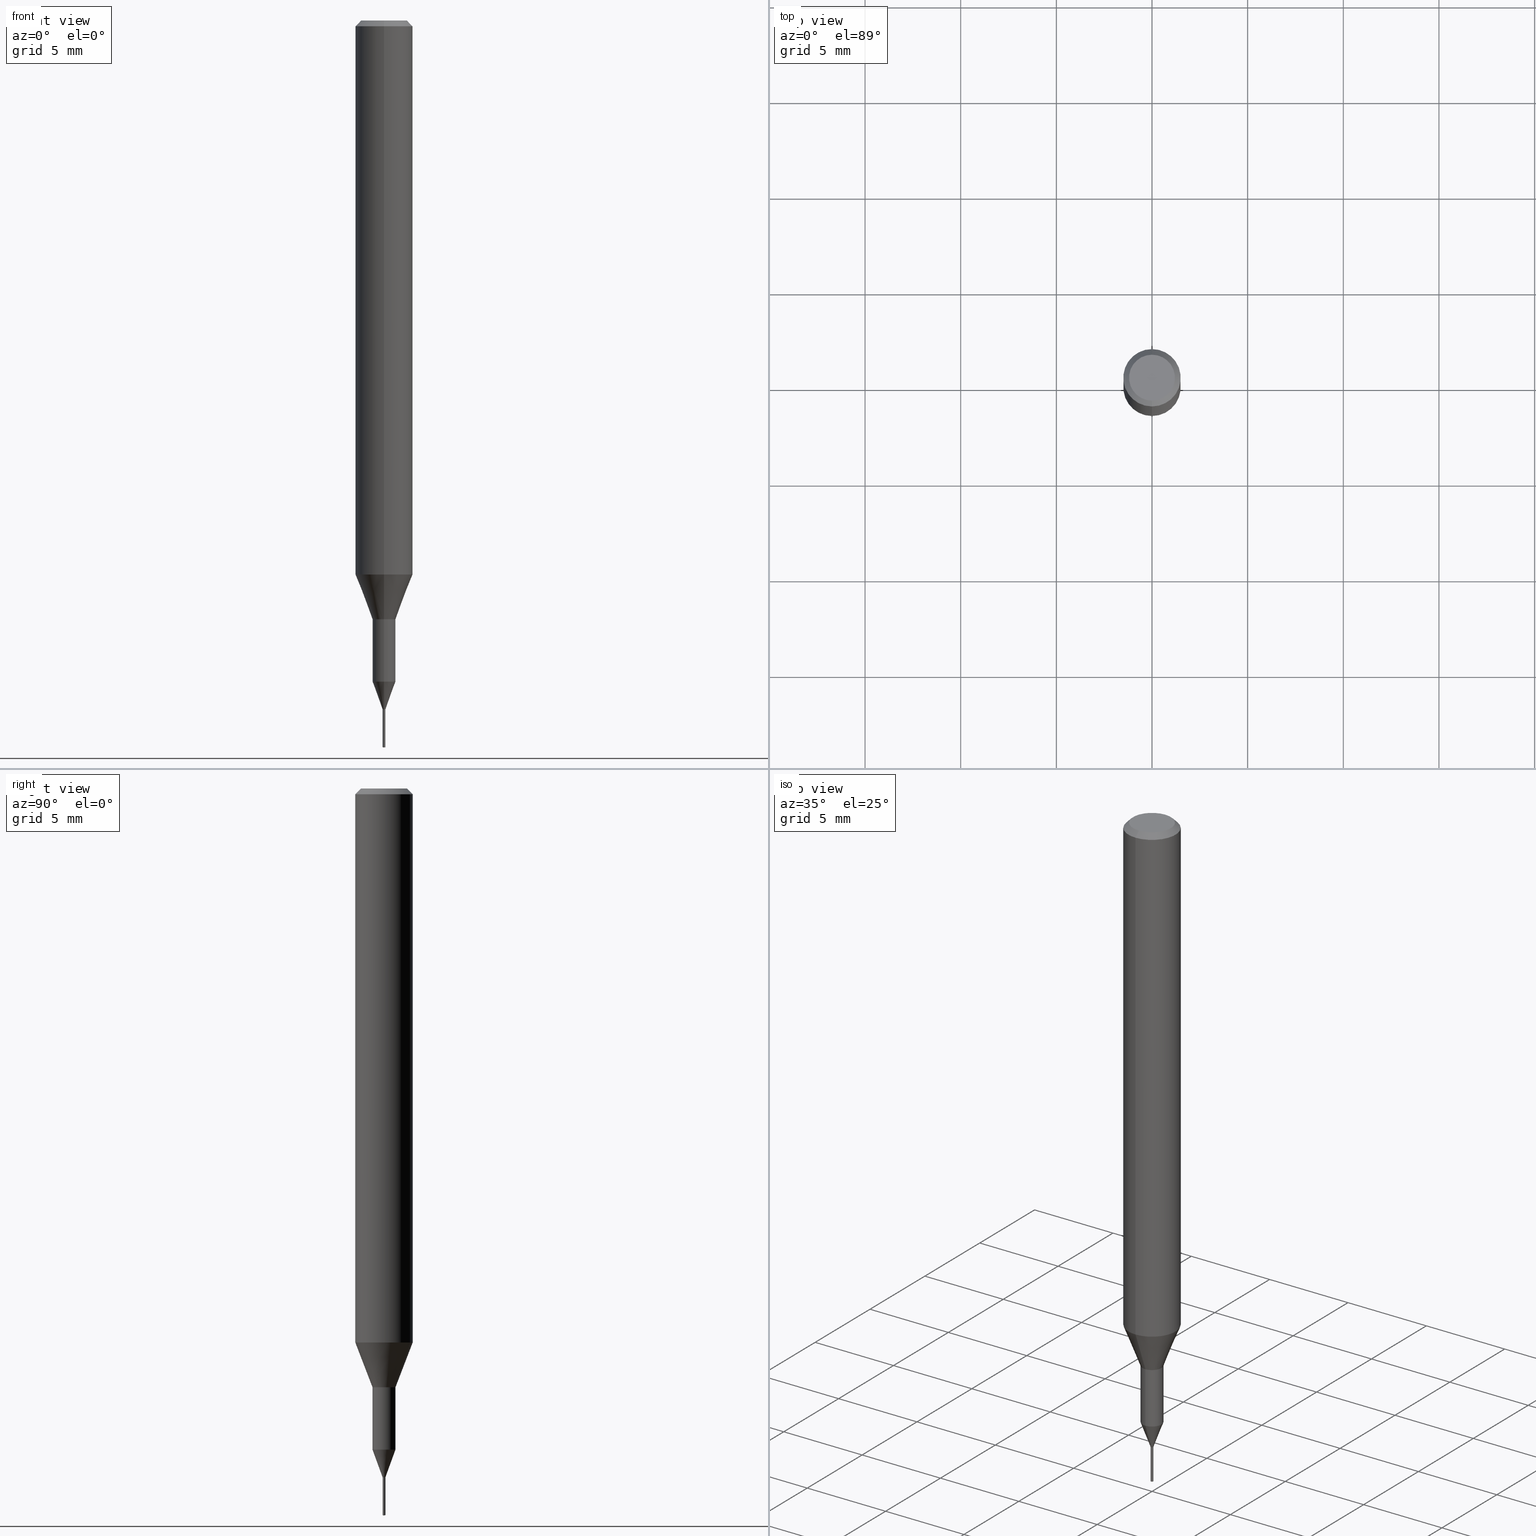
[diagram: canonical four-view strip — front | top / right | iso, engineering-drawing reading convention]
A machine part, canonical four-view strip (front | top / right | iso — engineering-drawing reading convention). The complete STEP part file that produces these views, byte-faithful:
ISO-10303-21;
HEADER;
FILE_DESCRIPTION(('no description'),'unknown implementation level');
FILE_NAME('C-UMD2015-020-Huellk.stp','  ',('CIMSOURCE GmbH'),('CADClick - KiM GmbH - www.kimweb.de'),'unknown preprocess','ACIS','unknown authorization');
FILE_SCHEMA(('automotive_design'));
ENDSEC;
DATA;
#1=MECHANICAL_DESIGN_GEOMETRIC_PRESENTATION_REPRESENTATION(' ',(#14,#15,#16,#17,#18,#19,#20,#21,#22,#23,#24,#25,#26,#27,#28,#29,#30,#31,#32,#33,#34,#35,#36,#37,#38,#39,#40,#41,#42,#43,#44,#45,#46,#47,#48,#49,#50,#51,#52,#53,#54,#55,#56,#57,#58,#59,#60,#61,#62,#63,#64,#65,#66,#67,#68,#69,#70,#71,#72,#73,#74,#75,#76,#77,#78,#79,#80,#81,#82,#83,#84,#85,#86,#87,#88,#89,#90,#91,#92),#10);
#2=PRODUCT_DEFINITION_CONTEXT('',#93,'design');
#3=APPLICATION_PROTOCOL_DEFINITION('INTERNATIONAL STANDARD','automotive_design',1994,#93);
#4=PRODUCT_CATEGORY_RELATIONSHIP('NONE','NONE',#94,#95);
#5=SHAPE_DEFINITION_REPRESENTATION(#96,#97);
#6=PRODUCT_DEFINITION_CONTEXT('',#98,'design');
#7=APPLICATION_PROTOCOL_DEFINITION('INTERNATIONAL STANDARD','automotive_design',1994,#98);
#8=PRODUCT_CATEGORY_RELATIONSHIP('NONE','NONE',#99,#100);
#9=SHAPE_DEFINITION_REPRESENTATION(#101,#102);
#10= (GEOMETRIC_REPRESENTATION_CONTEXT(3)GLOBAL_UNCERTAINTY_ASSIGNED_CONTEXT((#105))GLOBAL_UNIT_ASSIGNED_CONTEXT((#107,#108,#109))REPRESENTATION_CONTEXT('NONE','WORKSPACE'));
#14=STYLED_ITEM('',(#111),#112);
#15=STYLED_ITEM('',(#113),#114);
#16=STYLED_ITEM('',(#115),#116);
#17=STYLED_ITEM('',(#117),#118);
#18=STYLED_ITEM('',(#119),#120);
#19=STYLED_ITEM('',(#121),#122);
#20=STYLED_ITEM('',(#123),#124);
#21=STYLED_ITEM('',(#125),#126);
#22=STYLED_ITEM('',(#127),#128);
#23=STYLED_ITEM('',(#129),#130);
#24=STYLED_ITEM('',(#131),#132);
#25=STYLED_ITEM('',(#133),#134);
#26=STYLED_ITEM('',(#135),#136);
#27=STYLED_ITEM('',(#137),#138);
#28=STYLED_ITEM('',(#139),#140);
#29=STYLED_ITEM('',(#141),#142);
#30=STYLED_ITEM('',(#143),#144);
#31=STYLED_ITEM('',(#145),#146);
#32=STYLED_ITEM('',(#147),#148);
#33=STYLED_ITEM('',(#149),#150);
#34=STYLED_ITEM('',(#151),#152);
#35=STYLED_ITEM('',(#153),#154);
#36=STYLED_ITEM('',(#155),#156);
#37=STYLED_ITEM('',(#157),#158);
#38=STYLED_ITEM('',(#159),#160);
#39=STYLED_ITEM('',(#161),#162);
#40=STYLED_ITEM('',(#163),#164);
#41=STYLED_ITEM('',(#165),#166);
#42=STYLED_ITEM('',(#167),#168);
#43=STYLED_ITEM('',(#169),#170);
#44=STYLED_ITEM('',(#171),#172);
#45=STYLED_ITEM('',(#173),#174);
#46=STYLED_ITEM('',(#175),#176);
#47=STYLED_ITEM('',(#177),#178);
#48=STYLED_ITEM('',(#179),#180);
#49=STYLED_ITEM('',(#181),#182);
#50=STYLED_ITEM('',(#183),#184);
#51=STYLED_ITEM('',(#185),#186);
#52=STYLED_ITEM('',(#187),#188);
#53=STYLED_ITEM('',(#189),#190);
#54=STYLED_ITEM('',(#191),#192);
#55=STYLED_ITEM('',(#193),#194);
#56=STYLED_ITEM('',(#195),#196);
#57=STYLED_ITEM('',(#197),#198);
#58=STYLED_ITEM('',(#199),#200);
#59=STYLED_ITEM('',(#201),#202);
#60=STYLED_ITEM('',(#203),#204);
#61=STYLED_ITEM('',(#205),#206);
#62=STYLED_ITEM('',(#207),#208);
#63=STYLED_ITEM('',(#209),#210);
#64=STYLED_ITEM('',(#211),#212);
#65=STYLED_ITEM('',(#213),#214);
#66=STYLED_ITEM('',(#215),#216);
#67=STYLED_ITEM('',(#217),#218);
#68=STYLED_ITEM('',(#219),#220);
#69=STYLED_ITEM('',(#221),#222);
#70=STYLED_ITEM('',(#223),#224);
#71=STYLED_ITEM('',(#225),#226);
#72=STYLED_ITEM('',(#227),#228);
#73=STYLED_ITEM('',(#229),#230);
#74=STYLED_ITEM('',(#231),#232);
#75=STYLED_ITEM('',(#233),#234);
#76=STYLED_ITEM('',(#235),#236);
#77=STYLED_ITEM('',(#237),#238);
#78=STYLED_ITEM('',(#239),#240);
#79=STYLED_ITEM('',(#241),#242);
#80=STYLED_ITEM('',(#243),#244);
#81=STYLED_ITEM('',(#245),#246);
#82=STYLED_ITEM('',(#247),#248);
#83=STYLED_ITEM('',(#249),#250);
#84=STYLED_ITEM('',(#251),#252);
#85=STYLED_ITEM('',(#253),#254);
#86=STYLED_ITEM('',(#255),#256);
#87=STYLED_ITEM('',(#257),#258);
#88=STYLED_ITEM('',(#259),#260);
#89=STYLED_ITEM('',(#261),#262);
#90=STYLED_ITEM('',(#263),#264);
#91=STYLED_ITEM('',(#265),#266);
#92=STYLED_ITEM('',(#267),#268);
#93=APPLICATION_CONTEXT(' ');
#94=PRODUCT_CATEGORY('part','NONE');
#95=PRODUCT_RELATED_PRODUCT_CATEGORY('detail',' ',(#269));
#96=PRODUCT_DEFINITION_SHAPE('NONE','NONE',#270);
#97=ADVANCED_BREP_SHAPE_REPRESENTATION('1',(#202,#271),#10);
#98=APPLICATION_CONTEXT(' ');
#99=PRODUCT_CATEGORY('part','NONE');
#100=PRODUCT_RELATED_PRODUCT_CATEGORY('detail',' ',(#272));
#101=PRODUCT_DEFINITION_SHAPE('NONE','NONE',#273);
#102=ADVANCED_BREP_SHAPE_REPRESENTATION('2',(#158,#274),#10);
#105=UNCERTAINTY_MEASURE_WITH_UNIT(LENGTH_MEASURE(1.0E-006),#107,'','');
#107= (CONVERSION_BASED_UNIT('MILLIMETRE',#277)LENGTH_UNIT()NAMED_UNIT(#280));
#108= (NAMED_UNIT(#282)PLANE_ANGLE_UNIT()SI_UNIT($,.RADIAN.));
#109= (NAMED_UNIT(#282)SOLID_ANGLE_UNIT()SI_UNIT($,.STERADIAN.));
#111=PRESENTATION_STYLE_ASSIGNMENT((#288));
#112=ADVANCED_FACE('',(#289),#290,.T.);
#113=PRESENTATION_STYLE_ASSIGNMENT((#291));
#114=ADVANCED_FACE('',(#292),#293,.T.);
#115=PRESENTATION_STYLE_ASSIGNMENT((#294));
#116=EDGE_CURVE('',#142,#248,#295,.T.);
#117=PRESENTATION_STYLE_ASSIGNMENT((#296));
#118=EDGE_CURVE('',#240,#248,#297,.T.);
#119=PRESENTATION_STYLE_ASSIGNMENT((#298));
#120=VERTEX_POINT('',#299);
#121=PRESENTATION_STYLE_ASSIGNMENT((#300));
#122=EDGE_CURVE('',#166,#214,#301,.T.);
#123=PRESENTATION_STYLE_ASSIGNMENT((#302));
#124=EDGE_CURVE('',#180,#184,#303,.T.);
#125=PRESENTATION_STYLE_ASSIGNMENT((#304));
#126=EDGE_CURVE('',#222,#184,#305,.T.);
#127=PRESENTATION_STYLE_ASSIGNMENT((#306));
#128=VERTEX_POINT('',#307);
#129=PRESENTATION_STYLE_ASSIGNMENT((#308));
#130=VERTEX_POINT('',#309);
#131=PRESENTATION_STYLE_ASSIGNMENT((#310));
#132=EDGE_CURVE('',#142,#130,#311,.T.);
#133=PRESENTATION_STYLE_ASSIGNMENT((#312));
#134=ADVANCED_FACE('',(#313),#314,.T.);
#135=PRESENTATION_STYLE_ASSIGNMENT((#315));
#136=ADVANCED_FACE('',(#316),#317,.T.);
#137=PRESENTATION_STYLE_ASSIGNMENT((#318));
#138=EDGE_CURVE('',#180,#128,#319,.T.);
#139=PRESENTATION_STYLE_ASSIGNMENT((#320));
#140=EDGE_CURVE('',#228,#120,#321,.T.);
#141=PRESENTATION_STYLE_ASSIGNMENT((#322));
#142=VERTEX_POINT('',#323);
#143=PRESENTATION_STYLE_ASSIGNMENT((#324));
#144=VERTEX_POINT('',#325);
#145=PRESENTATION_STYLE_ASSIGNMENT((#326));
#146=EDGE_CURVE('',#182,#192,#327,.T.);
#147=PRESENTATION_STYLE_ASSIGNMENT((#328));
#148=ADVANCED_FACE('',(#329,#330),#331,.T.);
#149=PRESENTATION_STYLE_ASSIGNMENT((#332));
#150=VERTEX_POINT('',#333);
#151=PRESENTATION_STYLE_ASSIGNMENT((#334));
#152=EDGE_CURVE('',#150,#192,#335,.T.);
#153=PRESENTATION_STYLE_ASSIGNMENT((#336));
#154=ADVANCED_FACE('',(#337),#338,.T.);
#155=PRESENTATION_STYLE_ASSIGNMENT((#339));
#156=EDGE_CURVE('',#230,#242,#340,.T.);
#157=PRESENTATION_STYLE_ASSIGNMENT((#341));
#158=MANIFOLD_SOLID_BREP('2',#342);
#159=PRESENTATION_STYLE_ASSIGNMENT((#343));
#160=ADVANCED_FACE('',(#344),#345,.T.);
#161=PRESENTATION_STYLE_ASSIGNMENT((#346));
#162=EDGE_CURVE('',#144,#240,#347,.T.);
#163=PRESENTATION_STYLE_ASSIGNMENT((#348));
#164=VERTEX_POINT('',#349);
#165=PRESENTATION_STYLE_ASSIGNMENT((#350));
#166=VERTEX_POINT('',#351);
#167=PRESENTATION_STYLE_ASSIGNMENT((#352));
#168=EDGE_CURVE('',#120,#230,#353,.T.);
#169=PRESENTATION_STYLE_ASSIGNMENT((#354));
#170=EDGE_CURVE('',#166,#120,#355,.T.);
#171=PRESENTATION_STYLE_ASSIGNMENT((#356));
#172=EDGE_CURVE('',#192,#180,#357,.T.);
#173=PRESENTATION_STYLE_ASSIGNMENT((#358));
#174=VERTEX_POINT('',#359);
#175=PRESENTATION_STYLE_ASSIGNMENT((#360));
#176=EDGE_CURVE('',#262,#142,#361,.T.);
#177=PRESENTATION_STYLE_ASSIGNMENT((#362));
#178=EDGE_CURVE('',#248,#240,#363,.T.);
#179=PRESENTATION_STYLE_ASSIGNMENT((#364));
#180=VERTEX_POINT('',#365);
#181=PRESENTATION_STYLE_ASSIGNMENT((#366));
#182=VERTEX_POINT('',#367);
#183=PRESENTATION_STYLE_ASSIGNMENT((#368));
#184=VERTEX_POINT('',#369);
#185=PRESENTATION_STYLE_ASSIGNMENT((#370));
#186=ADVANCED_FACE('',(#371),#372,.T.);
#187=PRESENTATION_STYLE_ASSIGNMENT((#373));
#188=EDGE_CURVE('',#222,#128,#374,.T.);
#189=PRESENTATION_STYLE_ASSIGNMENT((#375));
#190=ADVANCED_FACE('',(#376),#377,.T.);
#191=PRESENTATION_STYLE_ASSIGNMENT((#378));
#192=VERTEX_POINT('',#379);
#193=PRESENTATION_STYLE_ASSIGNMENT((#380));
#194=ADVANCED_FACE('',(#381),#382,.T.);
#195=PRESENTATION_STYLE_ASSIGNMENT((#383));
#196=ADVANCED_FACE('',(#384),#385,.T.);
#197=PRESENTATION_STYLE_ASSIGNMENT((#386));
#198=ADVANCED_FACE('',(#387),#388,.T.);
#199=PRESENTATION_STYLE_ASSIGNMENT((#389));
#200=EDGE_CURVE('',#240,#130,#390,.T.);
#201=PRESENTATION_STYLE_ASSIGNMENT((#391));
#202=MANIFOLD_SOLID_BREP('1',#392);
#203=PRESENTATION_STYLE_ASSIGNMENT((#393));
#204=ADVANCED_FACE('',(#394),#395,.T.);
#205=PRESENTATION_STYLE_ASSIGNMENT((#396));
#206=EDGE_CURVE('',#262,#164,#397,.T.);
#207=PRESENTATION_STYLE_ASSIGNMENT((#398));
#208=ADVANCED_FACE('',(#399),#400,.T.);
#209=PRESENTATION_STYLE_ASSIGNMENT((#401));
#210=EDGE_CURVE('',#130,#164,#402,.T.);
#211=PRESENTATION_STYLE_ASSIGNMENT((#403));
#212=ADVANCED_FACE('',(#404),#405,.T.);
#213=PRESENTATION_STYLE_ASSIGNMENT((#406));
#214=VERTEX_POINT('',#407);
#215=PRESENTATION_STYLE_ASSIGNMENT((#408));
#216=EDGE_CURVE('',#184,#180,#409,.T.);
#217=PRESENTATION_STYLE_ASSIGNMENT((#410));
#218=EDGE_CURVE('',#248,#144,#411,.T.);
#219=PRESENTATION_STYLE_ASSIGNMENT((#412));
#220=EDGE_CURVE('',#150,#174,#413,.T.);
#221=PRESENTATION_STYLE_ASSIGNMENT((#414));
#222=VERTEX_POINT('',#415);
#223=PRESENTATION_STYLE_ASSIGNMENT((#416));
#224=EDGE_CURVE('',#164,#262,#417,.T.);
#225=PRESENTATION_STYLE_ASSIGNMENT((#418));
#226=EDGE_CURVE('',#130,#142,#419,.T.);
#227=PRESENTATION_STYLE_ASSIGNMENT((#420));
#228=VERTEX_POINT('',#421);
#229=PRESENTATION_STYLE_ASSIGNMENT((#422));
#230=VERTEX_POINT('',#423);
#231=PRESENTATION_STYLE_ASSIGNMENT((#424));
#232=EDGE_CURVE('',#214,#166,#425,.T.);
#233=PRESENTATION_STYLE_ASSIGNMENT((#426));
#234=EDGE_CURVE('',#184,#182,#427,.T.);
#235=PRESENTATION_STYLE_ASSIGNMENT((#428));
#236=EDGE_CURVE('',#192,#182,#429,.T.);
#237=PRESENTATION_STYLE_ASSIGNMENT((#430));
#238=ADVANCED_FACE('',(#431),#432,.T.);
#239=PRESENTATION_STYLE_ASSIGNMENT((#433));
#240=VERTEX_POINT('',#434);
#241=PRESENTATION_STYLE_ASSIGNMENT((#435));
#242=VERTEX_POINT('',#436);
#243=PRESENTATION_STYLE_ASSIGNMENT((#437));
#244=EDGE_CURVE('',#228,#214,#438,.T.);
#245=PRESENTATION_STYLE_ASSIGNMENT((#439));
#246=ADVANCED_FACE('',(#440),#441,.T.);
#247=PRESENTATION_STYLE_ASSIGNMENT((#442));
#248=VERTEX_POINT('',#443);
#249=PRESENTATION_STYLE_ASSIGNMENT((#444));
#250=ADVANCED_FACE('',(#445),#446,.T.);
#251=PRESENTATION_STYLE_ASSIGNMENT((#447));
#252=EDGE_CURVE('',#242,#228,#448,.T.);
#253=PRESENTATION_STYLE_ASSIGNMENT((#449));
#254=EDGE_CURVE('',#182,#174,#450,.T.);
#255=PRESENTATION_STYLE_ASSIGNMENT((#451));
#256=EDGE_CURVE('',#242,#230,#452,.T.);
#257=PRESENTATION_STYLE_ASSIGNMENT((#453));
#258=EDGE_CURVE('',#120,#228,#454,.T.);
#259=PRESENTATION_STYLE_ASSIGNMENT((#455));
#260=ADVANCED_FACE('',(#456),#457,.T.);
#261=PRESENTATION_STYLE_ASSIGNMENT((#458));
#262=VERTEX_POINT('',#459);
#263=PRESENTATION_STYLE_ASSIGNMENT((#460));
#264=EDGE_CURVE('',#128,#222,#461,.T.);
#265=PRESENTATION_STYLE_ASSIGNMENT((#462));
#266=ADVANCED_FACE('',(#463),#464,.T.);
#267=PRESENTATION_STYLE_ASSIGNMENT((#465));
#268=EDGE_CURVE('',#174,#150,#466,.T.);
#269=PRODUCT('1','1','PART-1-DESC',(#467));
#270=PRODUCT_DEFINITION('NONE','NONE',#468,#2);
#271=AXIS2_PLACEMENT_3D('',#469,#470,#471);
#272=PRODUCT('2','2','PART-2-DESC',(#472));
#273=PRODUCT_DEFINITION('NONE','NONE',#473,#6);
#274=AXIS2_PLACEMENT_3D('',#474,#475,#476);
#277=LENGTH_MEASURE_WITH_UNIT(LENGTH_MEASURE(1.0),#477);
#280=DIMENSIONAL_EXPONENTS(1.0,0.0,0.0,0.0,0.0,0.0,0.0);
#282=DIMENSIONAL_EXPONENTS(0.0,0.0,0.0,0.0,0.0,0.0,0.0);
#288=SURFACE_STYLE_USAGE(.BOTH.,#478);
#289=FACE_OUTER_BOUND('',#479,.T.);
#290=CONICAL_SURFACE('',#480,0.337493202149792,0.349130098982072);
#291=SURFACE_STYLE_USAGE(.BOTH.,#481);
#292=FACE_OUTER_BOUND('',#482,.T.);
#293=CONICAL_SURFACE('',#483,0.337493202149792,0.349130098982072);
#294=CURVE_STYLE('',#484,POSITIVE_LENGTH_MEASURE(1.0E-006),#485);
#295=LINE('',#486,#487);
#296=CURVE_STYLE('',#488,POSITIVE_LENGTH_MEASURE(1.0E-006),#489);
#297=CIRCLE('',#490,0.075);
#298=POINT_STYLE(' ',#491,POSITIVE_LENGTH_MEASURE(1.0E-006),#492);
#299=CARTESIAN_POINT('',(0.0,0.59995,-34.558));
#300=CURVE_STYLE('',#493,POSITIVE_LENGTH_MEASURE(1.0E-006),#494);
#301=CIRCLE('',#495,0.59995);
#302=CURVE_STYLE('',#496,POSITIVE_LENGTH_MEASURE(1.0E-006),#497);
#303=CIRCLE('',#498,1.5);
#304=CURVE_STYLE('',#499,POSITIVE_LENGTH_MEASURE(1.0E-006),#500);
#305=LINE('',#501,#502);
#306=POINT_STYLE(' ',#503,POSITIVE_LENGTH_MEASURE(1.0E-006),#504);
#307=CARTESIAN_POINT('',(0.0,0.6,-31.3));
#308=POINT_STYLE(' ',#505,POSITIVE_LENGTH_MEASURE(1.0E-006),#506);
#309=CARTESIAN_POINT('',(0.075,9.18454765366783E-018,-36.0));
#310=CURVE_STYLE('',#507,POSITIVE_LENGTH_MEASURE(1.0E-006),#508);
#311=CIRCLE('',#509,0.075);
#312=SURFACE_STYLE_USAGE(.BOTH.,#510);
#313=FACE_OUTER_BOUND('',#511,.T.);
#314=CONICAL_SURFACE('',#512,1.05,0.366459241971866);
#315=SURFACE_STYLE_USAGE(.BOTH.,#513);
#316=FACE_OUTER_BOUND('',#514,.T.);
#317=CYLINDRICAL_SURFACE('',#515,0.59995);
#318=CURVE_STYLE('',#516,POSITIVE_LENGTH_MEASURE(1.0E-006),#517);
#319=LINE('',#518,#519);
#320=CURVE_STYLE('',#520,POSITIVE_LENGTH_MEASURE(1.0E-006),#521);
#321=CIRCLE('',#522,0.59995);
#322=POINT_STYLE(' ',#523,POSITIVE_LENGTH_MEASURE(1.0E-006),#524);
#323=CARTESIAN_POINT('',(-0.075,0.0,-36.0));
#324=POINT_STYLE(' ',#525,POSITIVE_LENGTH_MEASURE(1.0E-006),#526);
#325=CARTESIAN_POINT('',(0.0,0.0,-38.0));
#326=CURVE_STYLE('',#527,POSITIVE_LENGTH_MEASURE(1.0E-006),#528);
#327=CIRCLE('',#529,1.5);
#328=SURFACE_STYLE_USAGE(.BOTH.,#530);
#329=FACE_BOUND('',#531,.T.);
#330=FACE_OUTER_BOUND('',#532,.T.);
#331=PLANE('',#533);
#332=POINT_STYLE(' ',#534,POSITIVE_LENGTH_MEASURE(1.0E-006),#535);
#333=CARTESIAN_POINT('',(0.0,1.2,0.0));
#334=CURVE_STYLE('',#536,POSITIVE_LENGTH_MEASURE(1.0E-006),#537);
#335=LINE('',#538,#539);
#336=SURFACE_STYLE_USAGE(.BOTH.,#540);
#337=FACE_OUTER_BOUND('',#541,.T.);
#338=CONICAL_SURFACE('',#542,0.0755182038834951,1.4746069699693);
#339=CURVE_STYLE('',#543,POSITIVE_LENGTH_MEASURE(1.0E-006),#544);
#340=CIRCLE('',#545,0.0750364042995838);
#341=SURFACE_STYLE_USAGE(.BOTH.,#546);
#342=CLOSED_SHELL('',(#196,#198,#260,#190,#154,#246,#238));
#343=SURFACE_STYLE_USAGE(.BOTH.,#547);
#344=FACE_OUTER_BOUND('',#548,.T.);
#345=PLANE('',#549);
#346=CURVE_STYLE('',#550,POSITIVE_LENGTH_MEASURE(1.0E-006),#551);
#347=LINE('',#552,#553);
#348=POINT_STYLE(' ',#554,POSITIVE_LENGTH_MEASURE(1.0E-006),#555);
#349=CARTESIAN_POINT('',(0.0760364077669902,9.31146680732853E-018,-35.9999));
#350=POINT_STYLE(' ',#556,POSITIVE_LENGTH_MEASURE(1.0E-006),#557);
#351=CARTESIAN_POINT('',(0.0,0.59995,-31.3));
#352=CURVE_STYLE('',#558,POSITIVE_LENGTH_MEASURE(1.0E-006),#559);
#353=LINE('',#560,#561);
#354=CURVE_STYLE('',#562,POSITIVE_LENGTH_MEASURE(1.0E-006),#563);
#355=LINE('',#564,#565);
#356=CURVE_STYLE('',#566,POSITIVE_LENGTH_MEASURE(1.0E-006),#567);
#357=LINE('',#568,#569);
#358=POINT_STYLE(' ',#570,POSITIVE_LENGTH_MEASURE(1.0E-006),#571);
#359=CARTESIAN_POINT('',(1.46952762458685E-016,-1.2,0.0));
#360=CURVE_STYLE('',#572,POSITIVE_LENGTH_MEASURE(1.0E-006),#573);
#361=LINE('',#574,#575);
#362=CURVE_STYLE('',#576,POSITIVE_LENGTH_MEASURE(1.0E-006),#577);
#363=CIRCLE('',#578,0.075);
#364=POINT_STYLE(' ',#579,POSITIVE_LENGTH_MEASURE(1.0E-006),#580);
#365=CARTESIAN_POINT('',(0.0,1.5,-28.955));
#366=POINT_STYLE(' ',#581,POSITIVE_LENGTH_MEASURE(1.0E-006),#582);
#367=CARTESIAN_POINT('',(1.83690953073357E-016,-1.5,-0.300000000000001));
#368=POINT_STYLE(' ',#583,POSITIVE_LENGTH_MEASURE(1.0E-006),#584);
#369=CARTESIAN_POINT('',(1.83690953073357E-016,-1.5,-28.955));
#370=SURFACE_STYLE_USAGE(.BOTH.,#585);
#371=FACE_OUTER_BOUND('',#586,.T.);
#372=CONICAL_SURFACE('',#587,1.35,0.785398163397447);
#373=CURVE_STYLE('',#588,POSITIVE_LENGTH_MEASURE(1.0E-006),#589);
#374=CIRCLE('',#590,0.6);
#375=SURFACE_STYLE_USAGE(.BOTH.,#591);
#376=FACE_OUTER_BOUND('',#592,.T.);
#377=PLANE('',#593);
#378=POINT_STYLE(' ',#594,POSITIVE_LENGTH_MEASURE(1.0E-006),#595);
#379=CARTESIAN_POINT('',(0.0,1.5,-0.300000000000001));
#380=SURFACE_STYLE_USAGE(.BOTH.,#596);
#381=FACE_OUTER_BOUND('',#597,.T.);
#382=CYLINDRICAL_SURFACE('',#598,1.5);
#383=SURFACE_STYLE_USAGE(.BOTH.,#599);
#384=FACE_OUTER_BOUND('',#600,.T.);
#385=CONICAL_SURFACE('',#601,0.0375,1.30899693193389);
#386=SURFACE_STYLE_USAGE(.BOTH.,#602);
#387=FACE_OUTER_BOUND('',#603,.T.);
#388=CYLINDRICAL_SURFACE('',#604,0.075);
#389=CURVE_STYLE('',#605,POSITIVE_LENGTH_MEASURE(1.0E-006),#606);
#390=LINE('',#607,#608);
#391=SURFACE_STYLE_USAGE(.BOTH.,#609);
#392=CLOSED_SHELL('',(#112,#136,#266,#250,#186,#212,#204,#194,#134,#148,#208,#114,#160));
#393=SURFACE_STYLE_USAGE(.BOTH.,#610);
#394=FACE_OUTER_BOUND('',#611,.T.);
#395=CONICAL_SURFACE('',#612,1.35,0.785398163397447);
#396=CURVE_STYLE('',#613,POSITIVE_LENGTH_MEASURE(1.0E-006),#614);
#397=CIRCLE('',#615,0.0760364077669902);
#398=SURFACE_STYLE_USAGE(.BOTH.,#616);
#399=FACE_OUTER_BOUND('',#617,.T.);
#400=CYLINDRICAL_SURFACE('',#618,0.59995);
#401=CURVE_STYLE('',#619,POSITIVE_LENGTH_MEASURE(1.0E-006),#620);
#402=LINE('',#621,#622);
#403=SURFACE_STYLE_USAGE(.BOTH.,#623);
#404=FACE_OUTER_BOUND('',#624,.T.);
#405=PLANE('',#625);
#406=POINT_STYLE(' ',#626,POSITIVE_LENGTH_MEASURE(1.0E-006),#627);
#407=CARTESIAN_POINT('',(7.34702581975735E-017,-0.59995,-31.3));
#408=CURVE_STYLE('',#628,POSITIVE_LENGTH_MEASURE(1.0E-006),#629);
#409=CIRCLE('',#630,1.5);
#410=CURVE_STYLE('',#631,POSITIVE_LENGTH_MEASURE(1.0E-006),#632);
#411=LINE('',#633,#634);
#412=CURVE_STYLE('',#635,POSITIVE_LENGTH_MEASURE(1.0E-006),#636);
#413=CIRCLE('',#637,1.2);
#414=POINT_STYLE(' ',#638,POSITIVE_LENGTH_MEASURE(1.0E-006),#639);
#415=CARTESIAN_POINT('',(7.34763812293426E-017,-0.6,-31.3));
#416=CURVE_STYLE('',#640,POSITIVE_LENGTH_MEASURE(1.0E-006),#641);
#417=CIRCLE('',#642,0.0760364077669902);
#418=CURVE_STYLE('',#643,POSITIVE_LENGTH_MEASURE(1.0E-006),#644);
#419=CIRCLE('',#645,0.075);
#420=POINT_STYLE(' ',#646,POSITIVE_LENGTH_MEASURE(1.0E-006),#647);
#421=CARTESIAN_POINT('',(7.34702581975735E-017,-0.59995,-34.558));
#422=POINT_STYLE(' ',#648,POSITIVE_LENGTH_MEASURE(1.0E-006),#649);
#423=CARTESIAN_POINT('',(0.0,0.0750364042995838,-35.9999));
#424=CURVE_STYLE('',#650,POSITIVE_LENGTH_MEASURE(1.0E-006),#651);
#425=CIRCLE('',#652,0.59995);
#426=CURVE_STYLE('',#653,POSITIVE_LENGTH_MEASURE(1.0E-006),#654);
#427=LINE('',#655,#656);
#428=CURVE_STYLE('',#657,POSITIVE_LENGTH_MEASURE(1.0E-006),#658);
#429=CIRCLE('',#659,1.5);
#430=SURFACE_STYLE_USAGE(.BOTH.,#660);
#431=FACE_OUTER_BOUND('',#661,.T.);
#432=CONICAL_SURFACE('',#662,0.0375,1.30899693193389);
#433=POINT_STYLE(' ',#663,POSITIVE_LENGTH_MEASURE(1.0E-006),#664);
#434=CARTESIAN_POINT('',(0.075,9.18454765366783E-018,-37.97990381));
#435=POINT_STYLE(' ',#665,POSITIVE_LENGTH_MEASURE(1.0E-006),#666);
#436=CARTESIAN_POINT('',(9.18900574732551E-018,-0.0750364042995838,-35.9999));
#437=CURVE_STYLE('',#667,POSITIVE_LENGTH_MEASURE(1.0E-006),#668);
#438=LINE('',#669,#670);
#439=SURFACE_STYLE_USAGE(.BOTH.,#671);
#440=FACE_OUTER_BOUND('',#672,.T.);
#441=CYLINDRICAL_SURFACE('',#673,0.075);
#442=POINT_STYLE(' ',#674,POSITIVE_LENGTH_MEASURE(1.0E-006),#675);
#443=CARTESIAN_POINT('',(-0.075,0.0,-37.97990381));
#444=SURFACE_STYLE_USAGE(.BOTH.,#676);
#445=FACE_OUTER_BOUND('',#677,.T.);
#446=CYLINDRICAL_SURFACE('',#678,1.5);
#447=CURVE_STYLE('',#679,POSITIVE_LENGTH_MEASURE(1.0E-006),#680);
#448=LINE('',#681,#682);
#449=CURVE_STYLE('',#683,POSITIVE_LENGTH_MEASURE(1.0E-006),#684);
#450=LINE('',#685,#686);
#451=CURVE_STYLE('',#687,POSITIVE_LENGTH_MEASURE(1.0E-006),#688);
#452=CIRCLE('',#689,0.0750364042995838);
#453=CURVE_STYLE('',#690,POSITIVE_LENGTH_MEASURE(1.0E-006),#691);
#454=CIRCLE('',#692,0.59995);
#455=SURFACE_STYLE_USAGE(.BOTH.,#693);
#456=FACE_OUTER_BOUND('',#694,.T.);
#457=CONICAL_SURFACE('',#695,0.0755182038834951,1.4746069699693);
#458=POINT_STYLE(' ',#696,POSITIVE_LENGTH_MEASURE(1.0E-006),#697);
#459=CARTESIAN_POINT('',(-0.0760364077669902,0.0,-35.9999));
#460=CURVE_STYLE('',#698,POSITIVE_LENGTH_MEASURE(1.0E-006),#699);
#461=CIRCLE('',#700,0.6);
#462=SURFACE_STYLE_USAGE(.BOTH.,#701);
#463=FACE_OUTER_BOUND('',#702,.T.);
#464=CONICAL_SURFACE('',#703,1.05,0.366459241971866);
#465=CURVE_STYLE('',#704,POSITIVE_LENGTH_MEASURE(1.0E-006),#705);
#466=CIRCLE('',#706,1.2);
#467=PRODUCT_CONTEXT('',#93,'mechanical');
#468=PRODUCT_DEFINITION_FORMATION_WITH_SPECIFIED_SOURCE(' ','NONE',#269,.NOT_KNOWN.);
#469=CARTESIAN_POINT('',(0.0,0.0,0.0));
#470=DIRECTION('',(0.0,0.0,1.0));
#471=DIRECTION('',(1.0,0.0,0.0));
#472=PRODUCT_CONTEXT('',#98,'mechanical');
#473=PRODUCT_DEFINITION_FORMATION_WITH_SPECIFIED_SOURCE(' ','NONE',#272,.NOT_KNOWN.);
#474=CARTESIAN_POINT('',(0.0,0.0,0.0));
#475=DIRECTION('',(0.0,0.0,1.0));
#476=DIRECTION('',(1.0,0.0,0.0));
#477= (NAMED_UNIT(#280)LENGTH_UNIT()SI_UNIT(.MILLI.,.METRE.));
#478=SURFACE_SIDE_STYLE('',(#708));
#479=EDGE_LOOP('',(#709,#710,#711,#712));
#480=AXIS2_PLACEMENT_3D('',#713,#714,#715);
#481=SURFACE_SIDE_STYLE('',(#716));
#482=EDGE_LOOP('',(#717,#718,#719,#720));
#483=AXIS2_PLACEMENT_3D('',#721,#722,#723);
#484=DRAUGHTING_PRE_DEFINED_CURVE_FONT('continuous');
#485=COLOUR_RGB('',0.800000011920929,0.800000011920929,0.800000011920929);
#486=CARTESIAN_POINT('',(-0.075,-9.18454765366783E-018,-36.989951905));
#487=VECTOR('',#724,1.0);
#488=DRAUGHTING_PRE_DEFINED_CURVE_FONT('continuous');
#489=COLOUR_RGB('',0.800000011920929,0.800000011920929,0.800000011920929);
#490=AXIS2_PLACEMENT_3D('',#725,#726,#727);
#491=PRE_DEFINED_MARKER('');
#492=COLOUR_RGB('',0.498039215803146,0.498039215803146,0.498039215803146);
#493=DRAUGHTING_PRE_DEFINED_CURVE_FONT('continuous');
#494=COLOUR_RGB('',0.498039215803146,0.498039215803146,0.498039215803146);
#495=AXIS2_PLACEMENT_3D('',#728,#729,#730);
#496=DRAUGHTING_PRE_DEFINED_CURVE_FONT('continuous');
#497=COLOUR_RGB('',0.498039215803146,0.498039215803146,0.498039215803146);
#498=AXIS2_PLACEMENT_3D('',#731,#732,#733);
#499=DRAUGHTING_PRE_DEFINED_CURVE_FONT('continuous');
#500=COLOUR_RGB('',0.498039215803146,0.498039215803146,0.498039215803146);
#501=CARTESIAN_POINT('',(1.2858366715135E-016,-1.05,-30.1275));
#502=VECTOR('',#734,1.0);
#503=PRE_DEFINED_MARKER('');
#504=COLOUR_RGB('',0.498039215803146,0.498039215803146,0.498039215803146);
#505=PRE_DEFINED_MARKER('');
#506=COLOUR_RGB('',0.800000011920929,0.800000011920929,0.800000011920929);
#507=DRAUGHTING_PRE_DEFINED_CURVE_FONT('continuous');
#508=COLOUR_RGB('',0.800000011920929,0.800000011920929,0.800000011920929);
#509=AXIS2_PLACEMENT_3D('',#735,#736,#737);
#510=SURFACE_SIDE_STYLE('',(#738));
#511=EDGE_LOOP('',(#739,#740,#741,#742));
#512=AXIS2_PLACEMENT_3D('',#743,#744,#745);
#513=SURFACE_SIDE_STYLE('',(#746));
#514=EDGE_LOOP('',(#747,#748,#749,#750));
#515=AXIS2_PLACEMENT_3D('',#751,#752,#753);
#516=DRAUGHTING_PRE_DEFINED_CURVE_FONT('continuous');
#517=COLOUR_RGB('',0.498039215803146,0.498039215803146,0.498039215803146);
#518=CARTESIAN_POINT('',(-1.2858366715135E-016,1.05,-30.1275));
#519=VECTOR('',#754,1.0);
#520=DRAUGHTING_PRE_DEFINED_CURVE_FONT('continuous');
#521=COLOUR_RGB('',0.498039215803146,0.498039215803146,0.498039215803146);
#522=AXIS2_PLACEMENT_3D('',#755,#756,#757);
#523=PRE_DEFINED_MARKER('');
#524=COLOUR_RGB('',0.800000011920929,0.800000011920929,0.800000011920929);
#525=PRE_DEFINED_MARKER('');
#526=COLOUR_RGB('',0.800000011920929,0.800000011920929,0.800000011920929);
#527=DRAUGHTING_PRE_DEFINED_CURVE_FONT('continuous');
#528=COLOUR_RGB('',0.498039215803146,0.498039215803146,0.498039215803146);
#529=AXIS2_PLACEMENT_3D('',#758,#759,#760);
#530=SURFACE_SIDE_STYLE('',(#761));
#531=EDGE_LOOP('',(#762,#763));
#532=EDGE_LOOP('',(#764,#765));
#533=AXIS2_PLACEMENT_3D('',#766,#767,#768);
#534=PRE_DEFINED_MARKER('');
#535=COLOUR_RGB('',0.498039215803146,0.498039215803146,0.498039215803146);
#536=DRAUGHTING_PRE_DEFINED_CURVE_FONT('continuous');
#537=COLOUR_RGB('',0.498039215803146,0.498039215803146,0.498039215803146);
#538=CARTESIAN_POINT('',(-1.65321857766021E-016,1.35,-0.149999999999999));
#539=VECTOR('',#769,1.0);
#540=SURFACE_SIDE_STYLE('',(#770));
#541=EDGE_LOOP('',(#771,#772,#773,#774));
#542=AXIS2_PLACEMENT_3D('',#775,#776,#777);
#543=DRAUGHTING_PRE_DEFINED_CURVE_FONT('continuous');
#544=COLOUR_RGB('',0.498039215803146,0.498039215803146,0.498039215803146);
#545=AXIS2_PLACEMENT_3D('',#778,#779,#780);
#546=SURFACE_SIDE_STYLE('',(#781));
#547=SURFACE_SIDE_STYLE('',(#782));
#548=EDGE_LOOP('',(#783,#784));
#549=AXIS2_PLACEMENT_3D('',#785,#786,#787);
#550=DRAUGHTING_PRE_DEFINED_CURVE_FONT('continuous');
#551=COLOUR_RGB('',0.800000011920929,0.800000011920929,0.800000011920929);
#552=CARTESIAN_POINT('',(0.0375,4.59227382683391E-018,-37.989951905));
#553=VECTOR('',#788,1.0);
#554=PRE_DEFINED_MARKER('');
#555=COLOUR_RGB('',0.800000011920929,0.800000011920929,0.800000011920929);
#556=PRE_DEFINED_MARKER('');
#557=COLOUR_RGB('',0.498039215803146,0.498039215803146,0.498039215803146);
#558=DRAUGHTING_PRE_DEFINED_CURVE_FONT('continuous');
#559=COLOUR_RGB('',0.498039215803146,0.498039215803146,0.498039215803146);
#560=CARTESIAN_POINT('',(-4.13296319724495E-017,0.337493202149792,-35.27895));
#561=VECTOR('',#789,1.0);
#562=DRAUGHTING_PRE_DEFINED_CURVE_FONT('continuous');
#563=COLOUR_RGB('',0.498039215803146,0.498039215803146,0.498039215803146);
#564=CARTESIAN_POINT('',(-7.34702581975735E-017,0.59995,-32.929));
#565=VECTOR('',#790,1.0);
#566=DRAUGHTING_PRE_DEFINED_CURVE_FONT('continuous');
#567=COLOUR_RGB('',0.498039215803146,0.498039215803146,0.498039215803146);
#568=CARTESIAN_POINT('',(-1.83690953073357E-016,1.5,-14.6275));
#569=VECTOR('',#791,1.0);
#570=PRE_DEFINED_MARKER('');
#571=COLOUR_RGB('',0.498039215803146,0.498039215803146,0.498039215803146);
#572=DRAUGHTING_PRE_DEFINED_CURVE_FONT('continuous');
#573=COLOUR_RGB('',0.800000011920929,0.800000011920929,0.800000011920929);
#574=CARTESIAN_POINT('',(-0.0755182038834951,-9.24800723049818E-018,-35.99995));
#575=VECTOR('',#792,1.0);
#576=DRAUGHTING_PRE_DEFINED_CURVE_FONT('continuous');
#577=COLOUR_RGB('',0.800000011920929,0.800000011920929,0.800000011920929);
#578=AXIS2_PLACEMENT_3D('',#793,#794,#795);
#579=PRE_DEFINED_MARKER('');
#580=COLOUR_RGB('',0.498039215803146,0.498039215803146,0.498039215803146);
#581=PRE_DEFINED_MARKER('');
#582=COLOUR_RGB('',0.498039215803146,0.498039215803146,0.498039215803146);
#583=PRE_DEFINED_MARKER('');
#584=COLOUR_RGB('',0.498039215803146,0.498039215803146,0.498039215803146);
#585=SURFACE_SIDE_STYLE('',(#796));
#586=EDGE_LOOP('',(#797,#798,#799,#800));
#587=AXIS2_PLACEMENT_3D('',#801,#802,#803);
#588=DRAUGHTING_PRE_DEFINED_CURVE_FONT('continuous');
#589=COLOUR_RGB('',0.498039215803146,0.498039215803146,0.498039215803146);
#590=AXIS2_PLACEMENT_3D('',#804,#805,#806);
#591=SURFACE_SIDE_STYLE('',(#807));
#592=EDGE_LOOP('',(#808,#809));
#593=AXIS2_PLACEMENT_3D('',#810,#811,#812);
#594=PRE_DEFINED_MARKER('');
#595=COLOUR_RGB('',0.498039215803146,0.498039215803146,0.498039215803146);
#596=SURFACE_SIDE_STYLE('',(#813));
#597=EDGE_LOOP('',(#814,#815,#816,#817));
#598=AXIS2_PLACEMENT_3D('',#818,#819,#820);
#599=SURFACE_SIDE_STYLE('',(#821));
#600=EDGE_LOOP('',(#822,#823,#824));
#601=AXIS2_PLACEMENT_3D('',#825,#826,#827);
#602=SURFACE_SIDE_STYLE('',(#828));
#603=EDGE_LOOP('',(#829,#830,#831,#832));
#604=AXIS2_PLACEMENT_3D('',#833,#834,#835);
#605=DRAUGHTING_PRE_DEFINED_CURVE_FONT('continuous');
#606=COLOUR_RGB('',0.800000011920929,0.800000011920929,0.800000011920929);
#607=CARTESIAN_POINT('',(0.075,9.18454765366783E-018,-36.989951905));
#608=VECTOR('',#836,1.0);
#609=SURFACE_SIDE_STYLE('',(#837));
#610=SURFACE_SIDE_STYLE('',(#838));
#611=EDGE_LOOP('',(#839,#840,#841,#842));
#612=AXIS2_PLACEMENT_3D('',#843,#844,#845);
#613=DRAUGHTING_PRE_DEFINED_CURVE_FONT('continuous');
#614=COLOUR_RGB('',0.800000011920929,0.800000011920929,0.800000011920929);
#615=AXIS2_PLACEMENT_3D('',#846,#847,#848);
#616=SURFACE_SIDE_STYLE('',(#849));
#617=EDGE_LOOP('',(#850,#851,#852,#853));
#618=AXIS2_PLACEMENT_3D('',#854,#855,#856);
#619=DRAUGHTING_PRE_DEFINED_CURVE_FONT('continuous');
#620=COLOUR_RGB('',0.800000011920929,0.800000011920929,0.800000011920929);
#621=CARTESIAN_POINT('',(0.0755182038834951,9.24800723049818E-018,-35.99995));
#622=VECTOR('',#857,1.0);
#623=SURFACE_SIDE_STYLE('',(#858));
#624=EDGE_LOOP('',(#859,#860));
#625=AXIS2_PLACEMENT_3D('',#861,#862,#863);
#626=PRE_DEFINED_MARKER('');
#627=COLOUR_RGB('',0.498039215803146,0.498039215803146,0.498039215803146);
#628=DRAUGHTING_PRE_DEFINED_CURVE_FONT('continuous');
#629=COLOUR_RGB('',0.498039215803146,0.498039215803146,0.498039215803146);
#630=AXIS2_PLACEMENT_3D('',#864,#865,#866);
#631=DRAUGHTING_PRE_DEFINED_CURVE_FONT('continuous');
#632=COLOUR_RGB('',0.800000011920929,0.800000011920929,0.800000011920929);
#633=CARTESIAN_POINT('',(-0.0375,-4.59227382683391E-018,-37.989951905));
#634=VECTOR('',#867,1.0);
#635=DRAUGHTING_PRE_DEFINED_CURVE_FONT('continuous');
#636=COLOUR_RGB('',0.498039215803146,0.498039215803146,0.498039215803146);
#637=AXIS2_PLACEMENT_3D('',#868,#869,#870);
#638=PRE_DEFINED_MARKER('');
#639=COLOUR_RGB('',0.498039215803146,0.498039215803146,0.498039215803146);
#640=DRAUGHTING_PRE_DEFINED_CURVE_FONT('continuous');
#641=COLOUR_RGB('',0.800000011920929,0.800000011920929,0.800000011920929);
#642=AXIS2_PLACEMENT_3D('',#871,#872,#873);
#643=DRAUGHTING_PRE_DEFINED_CURVE_FONT('continuous');
#644=COLOUR_RGB('',0.800000011920929,0.800000011920929,0.800000011920929);
#645=AXIS2_PLACEMENT_3D('',#874,#875,#876);
#646=PRE_DEFINED_MARKER('');
#647=COLOUR_RGB('',0.498039215803146,0.498039215803146,0.498039215803146);
#648=PRE_DEFINED_MARKER('');
#649=COLOUR_RGB('',0.498039215803146,0.498039215803146,0.498039215803146);
#650=DRAUGHTING_PRE_DEFINED_CURVE_FONT('continuous');
#651=COLOUR_RGB('',0.498039215803146,0.498039215803146,0.498039215803146);
#652=AXIS2_PLACEMENT_3D('',#877,#878,#879);
#653=DRAUGHTING_PRE_DEFINED_CURVE_FONT('continuous');
#654=COLOUR_RGB('',0.498039215803146,0.498039215803146,0.498039215803146);
#655=CARTESIAN_POINT('',(1.83690953073357E-016,-1.5,-14.6275));
#656=VECTOR('',#880,1.0);
#657=DRAUGHTING_PRE_DEFINED_CURVE_FONT('continuous');
#658=COLOUR_RGB('',0.498039215803146,0.498039215803146,0.498039215803146);
#659=AXIS2_PLACEMENT_3D('',#881,#882,#883);
#660=SURFACE_SIDE_STYLE('',(#884));
#661=EDGE_LOOP('',(#885,#886,#887));
#662=AXIS2_PLACEMENT_3D('',#888,#889,#890);
#663=PRE_DEFINED_MARKER('');
#664=COLOUR_RGB('',0.800000011920929,0.800000011920929,0.800000011920929);
#665=PRE_DEFINED_MARKER('');
#666=COLOUR_RGB('',0.498039215803146,0.498039215803146,0.498039215803146);
#667=DRAUGHTING_PRE_DEFINED_CURVE_FONT('continuous');
#668=COLOUR_RGB('',0.498039215803146,0.498039215803146,0.498039215803146);
#669=CARTESIAN_POINT('',(7.34702581975735E-017,-0.59995,-32.929));
#670=VECTOR('',#891,1.0);
#671=SURFACE_SIDE_STYLE('',(#892));
#672=EDGE_LOOP('',(#893,#894,#895,#896));
#673=AXIS2_PLACEMENT_3D('',#897,#898,#899);
#674=PRE_DEFINED_MARKER('');
#675=COLOUR_RGB('',0.800000011920929,0.800000011920929,0.800000011920929);
#676=SURFACE_SIDE_STYLE('',(#900));
#677=EDGE_LOOP('',(#901,#902,#903,#904));
#678=AXIS2_PLACEMENT_3D('',#905,#906,#907);
#679=DRAUGHTING_PRE_DEFINED_CURVE_FONT('continuous');
#680=COLOUR_RGB('',0.498039215803146,0.498039215803146,0.498039215803146);
#681=CARTESIAN_POINT('',(4.13296319724495E-017,-0.337493202149792,-35.27895));
#682=VECTOR('',#908,1.0);
#683=DRAUGHTING_PRE_DEFINED_CURVE_FONT('continuous');
#684=COLOUR_RGB('',0.498039215803146,0.498039215803146,0.498039215803146);
#685=CARTESIAN_POINT('',(1.65321857766021E-016,-1.35,-0.149999999999999));
#686=VECTOR('',#909,1.0);
#687=DRAUGHTING_PRE_DEFINED_CURVE_FONT('continuous');
#688=COLOUR_RGB('',0.498039215803146,0.498039215803146,0.498039215803146);
#689=AXIS2_PLACEMENT_3D('',#910,#911,#912);
#690=DRAUGHTING_PRE_DEFINED_CURVE_FONT('continuous');
#691=COLOUR_RGB('',0.498039215803146,0.498039215803146,0.498039215803146);
#692=AXIS2_PLACEMENT_3D('',#913,#914,#915);
#693=SURFACE_SIDE_STYLE('',(#916));
#694=EDGE_LOOP('',(#917,#918,#919,#920));
#695=AXIS2_PLACEMENT_3D('',#921,#922,#923);
#696=PRE_DEFINED_MARKER('');
#697=COLOUR_RGB('',0.800000011920929,0.800000011920929,0.800000011920929);
#698=DRAUGHTING_PRE_DEFINED_CURVE_FONT('continuous');
#699=COLOUR_RGB('',0.498039215803146,0.498039215803146,0.498039215803146);
#700=AXIS2_PLACEMENT_3D('',#924,#925,#926);
#701=SURFACE_SIDE_STYLE('',(#927));
#702=EDGE_LOOP('',(#928,#929,#930,#931));
#703=AXIS2_PLACEMENT_3D('',#932,#933,#934);
#704=DRAUGHTING_PRE_DEFINED_CURVE_FONT('continuous');
#705=COLOUR_RGB('',0.498039215803146,0.498039215803146,0.498039215803146);
#706=AXIS2_PLACEMENT_3D('',#935,#936,#937);
#708=SURFACE_STYLE_FILL_AREA(#938);
#709=ORIENTED_EDGE('',*,*,#168,.F.);
#710=ORIENTED_EDGE('',*,*,#258,.T.);
#711=ORIENTED_EDGE('',*,*,#252,.F.);
#712=ORIENTED_EDGE('',*,*,#156,.F.);
#713=CARTESIAN_POINT('',(0.0,0.0,-35.27895));
#714=DIRECTION('',(-0.0,-0.0,1.0));
#715=DIRECTION('',(0.0,1.0,0.0));
#716=SURFACE_STYLE_FILL_AREA(#939);
#717=ORIENTED_EDGE('',*,*,#168,.T.);
#718=ORIENTED_EDGE('',*,*,#256,.F.);
#719=ORIENTED_EDGE('',*,*,#252,.T.);
#720=ORIENTED_EDGE('',*,*,#140,.T.);
#721=CARTESIAN_POINT('',(0.0,0.0,-35.27895));
#722=DIRECTION('',(-0.0,-0.0,1.0));
#723=DIRECTION('',(0.0,1.0,0.0));
#724=DIRECTION('',(0.0,0.0,-1.0));
#725=CARTESIAN_POINT('',(0.0,0.0,-37.97990381));
#726=DIRECTION('',(0.0,0.0,-1.0));
#727=DIRECTION('',(-1.0,0.0,0.0));
#728=CARTESIAN_POINT('',(0.0,0.0,-31.3));
#729=DIRECTION('',(0.0,0.0,-1.0));
#730=DIRECTION('',(0.0,1.0,0.0));
#731=CARTESIAN_POINT('',(0.0,0.0,-28.955));
#732=DIRECTION('',(0.0,0.0,-1.0));
#733=DIRECTION('',(0.0,1.0,0.0));
#734=DIRECTION('',(4.38791184365088E-017,-0.358312026550805,0.93360189140182));
#735=CARTESIAN_POINT('',(0.0,0.0,-36.0));
#736=DIRECTION('',(0.0,0.0,-1.0));
#737=DIRECTION('',(-1.0,0.0,0.0));
#738=SURFACE_STYLE_FILL_AREA(#940);
#739=ORIENTED_EDGE('',*,*,#138,.T.);
#740=ORIENTED_EDGE('',*,*,#188,.F.);
#741=ORIENTED_EDGE('',*,*,#126,.T.);
#742=ORIENTED_EDGE('',*,*,#216,.T.);
#743=CARTESIAN_POINT('',(0.0,0.0,-30.1275));
#744=DIRECTION('',(-0.0,-0.0,1.0));
#745=DIRECTION('',(0.0,1.0,0.0));
#746=SURFACE_STYLE_FILL_AREA(#941);
#747=ORIENTED_EDGE('',*,*,#170,.F.);
#748=ORIENTED_EDGE('',*,*,#122,.T.);
#749=ORIENTED_EDGE('',*,*,#244,.F.);
#750=ORIENTED_EDGE('',*,*,#258,.F.);
#751=CARTESIAN_POINT('',(0.0,0.0,-32.929));
#752=DIRECTION('',(-0.0,-0.0,1.0));
#753=DIRECTION('',(0.0,1.0,0.0));
#754=DIRECTION('',(4.38791184365088E-017,-0.358312026550805,-0.93360189140182));
#755=CARTESIAN_POINT('',(0.0,0.0,-34.558));
#756=DIRECTION('',(0.0,0.0,-1.0));
#757=DIRECTION('',(0.0,1.0,0.0));
#758=CARTESIAN_POINT('',(0.0,0.0,-0.300000000000001));
#759=DIRECTION('',(0.0,0.0,-1.0));
#760=DIRECTION('',(0.0,1.0,0.0));
#761=SURFACE_STYLE_FILL_AREA(#942);
#762=ORIENTED_EDGE('',*,*,#122,.F.);
#763=ORIENTED_EDGE('',*,*,#232,.F.);
#764=ORIENTED_EDGE('',*,*,#264,.T.);
#765=ORIENTED_EDGE('',*,*,#188,.T.);
#766=CARTESIAN_POINT('',(0.0,0.599975,-31.3));
#767=DIRECTION('',(0.0,0.0,-1.0));
#768=DIRECTION('',(0.0,1.0,0.0));
#769=DIRECTION('',(-8.65927457071934E-017,0.707106781186546,-0.707106781186549));
#770=SURFACE_STYLE_FILL_AREA(#943);
#771=ORIENTED_EDGE('',*,*,#176,.T.);
#772=ORIENTED_EDGE('',*,*,#226,.F.);
#773=ORIENTED_EDGE('',*,*,#210,.T.);
#774=ORIENTED_EDGE('',*,*,#224,.T.);
#775=CARTESIAN_POINT('',(0.0,0.0,-35.99995));
#776=DIRECTION('',(-0.0,-0.0,1.0));
#777=DIRECTION('',(-1.0,0.0,0.0));
#778=CARTESIAN_POINT('',(0.0,0.0,-35.9999));
#779=DIRECTION('',(0.0,0.0,-1.0));
#780=DIRECTION('',(0.0,1.0,0.0));
#781=SURFACE_STYLE_FILL_AREA(#944);
#782=SURFACE_STYLE_FILL_AREA(#945);
#783=ORIENTED_EDGE('',*,*,#156,.T.);
#784=ORIENTED_EDGE('',*,*,#256,.T.);
#785=CARTESIAN_POINT('',(0.0,0.0375182021497919,-35.9999));
#786=DIRECTION('',(0.0,0.0,-1.0));
#787=DIRECTION('',(0.0,1.0,0.0));
#788=DIRECTION('',(0.965925824461324,1.18287890195646E-016,0.258819051923756));
#789=DIRECTION('',(4.1891397407281E-017,-0.342080516539253,-0.939670644536818));
#790=DIRECTION('',(0.0,0.0,-1.0));
#791=DIRECTION('',(0.0,0.0,-1.0));
#792=DIRECTION('',(0.995377369665348,1.21894545134319E-016,-0.0960410951525071));
#793=CARTESIAN_POINT('',(0.0,0.0,-37.97990381));
#794=DIRECTION('',(0.0,0.0,-1.0));
#795=DIRECTION('',(-1.0,0.0,0.0));
#796=SURFACE_STYLE_FILL_AREA(#946);
#797=ORIENTED_EDGE('',*,*,#152,.F.);
#798=ORIENTED_EDGE('',*,*,#220,.T.);
#799=ORIENTED_EDGE('',*,*,#254,.F.);
#800=ORIENTED_EDGE('',*,*,#236,.F.);
#801=CARTESIAN_POINT('',(0.0,0.0,-0.149999999999999));
#802=DIRECTION('',(0.0,-0.0,-1.0));
#803=DIRECTION('',(0.0,1.0,0.0));
#804=CARTESIAN_POINT('',(0.0,0.0,-31.3));
#805=DIRECTION('',(0.0,0.0,-1.0));
#806=DIRECTION('',(0.0,1.0,0.0));
#807=SURFACE_STYLE_FILL_AREA(#947);
#808=ORIENTED_EDGE('',*,*,#206,.F.);
#809=ORIENTED_EDGE('',*,*,#224,.F.);
#810=CARTESIAN_POINT('',(-0.0380182038834951,0.0,-35.9999));
#811=DIRECTION('',(0.0,0.0,1.0));
#812=DIRECTION('',(1.0,0.0,0.0));
#813=SURFACE_STYLE_FILL_AREA(#948);
#814=ORIENTED_EDGE('',*,*,#172,.T.);
#815=ORIENTED_EDGE('',*,*,#216,.F.);
#816=ORIENTED_EDGE('',*,*,#234,.T.);
#817=ORIENTED_EDGE('',*,*,#146,.T.);
#818=CARTESIAN_POINT('',(0.0,0.0,-14.6275));
#819=DIRECTION('',(-0.0,-0.0,1.0));
#820=DIRECTION('',(0.0,1.0,0.0));
#821=SURFACE_STYLE_FILL_AREA(#949);
#822=ORIENTED_EDGE('',*,*,#162,.F.);
#823=ORIENTED_EDGE('',*,*,#218,.F.);
#824=ORIENTED_EDGE('',*,*,#178,.T.);
#825=CARTESIAN_POINT('',(0.0,0.0,-37.989951905));
#826=DIRECTION('',(-0.0,-0.0,1.0));
#827=DIRECTION('',(-1.0,0.0,0.0));
#828=SURFACE_STYLE_FILL_AREA(#950);
#829=ORIENTED_EDGE('',*,*,#116,.F.);
#830=ORIENTED_EDGE('',*,*,#132,.T.);
#831=ORIENTED_EDGE('',*,*,#200,.F.);
#832=ORIENTED_EDGE('',*,*,#178,.F.);
#833=CARTESIAN_POINT('',(0.0,0.0,-36.989951905));
#834=DIRECTION('',(-0.0,-0.0,1.0));
#835=DIRECTION('',(-1.0,0.0,0.0));
#836=DIRECTION('',(-0.0,-0.0,1.0));
#837=SURFACE_STYLE_FILL_AREA(#951);
#838=SURFACE_STYLE_FILL_AREA(#952);
#839=ORIENTED_EDGE('',*,*,#152,.T.);
#840=ORIENTED_EDGE('',*,*,#146,.F.);
#841=ORIENTED_EDGE('',*,*,#254,.T.);
#842=ORIENTED_EDGE('',*,*,#268,.T.);
#843=CARTESIAN_POINT('',(0.0,0.0,-0.149999999999999));
#844=DIRECTION('',(0.0,-0.0,-1.0));
#845=DIRECTION('',(0.0,1.0,0.0));
#846=CARTESIAN_POINT('',(0.0,0.0,-35.9999));
#847=DIRECTION('',(0.0,0.0,-1.0));
#848=DIRECTION('',(-1.0,0.0,0.0));
#849=SURFACE_STYLE_FILL_AREA(#953);
#850=ORIENTED_EDGE('',*,*,#170,.T.);
#851=ORIENTED_EDGE('',*,*,#140,.F.);
#852=ORIENTED_EDGE('',*,*,#244,.T.);
#853=ORIENTED_EDGE('',*,*,#232,.T.);
#854=CARTESIAN_POINT('',(0.0,0.0,-32.929));
#855=DIRECTION('',(-0.0,-0.0,1.0));
#856=DIRECTION('',(0.0,1.0,0.0));
#857=DIRECTION('',(0.995377369665348,1.21894545134319E-016,0.0960410951525071));
#858=SURFACE_STYLE_FILL_AREA(#954);
#859=ORIENTED_EDGE('',*,*,#220,.F.);
#860=ORIENTED_EDGE('',*,*,#268,.F.);
#861=CARTESIAN_POINT('',(0.0,0.6,0.0));
#862=DIRECTION('',(-0.0,0.0,1.0));
#863=DIRECTION('',(0.0,-1.0,0.0));
#864=CARTESIAN_POINT('',(0.0,0.0,-28.955));
#865=DIRECTION('',(0.0,0.0,-1.0));
#866=DIRECTION('',(0.0,1.0,0.0));
#867=DIRECTION('',(0.965925824461324,1.18287890195646E-016,-0.258819051923756));
#868=CARTESIAN_POINT('',(0.0,0.0,0.0));
#869=DIRECTION('',(0.0,0.0,-1.0));
#870=DIRECTION('',(0.0,1.0,0.0));
#871=CARTESIAN_POINT('',(0.0,0.0,-35.9999));
#872=DIRECTION('',(0.0,0.0,-1.0));
#873=DIRECTION('',(-1.0,0.0,0.0));
#874=CARTESIAN_POINT('',(0.0,0.0,-36.0));
#875=DIRECTION('',(0.0,0.0,-1.0));
#876=DIRECTION('',(-1.0,0.0,0.0));
#877=CARTESIAN_POINT('',(0.0,0.0,-31.3));
#878=DIRECTION('',(0.0,0.0,-1.0));
#879=DIRECTION('',(0.0,1.0,0.0));
#880=DIRECTION('',(-0.0,-0.0,1.0));
#881=CARTESIAN_POINT('',(0.0,0.0,-0.300000000000001));
#882=DIRECTION('',(0.0,0.0,-1.0));
#883=DIRECTION('',(0.0,1.0,0.0));
#884=SURFACE_STYLE_FILL_AREA(#955);
#885=ORIENTED_EDGE('',*,*,#162,.T.);
#886=ORIENTED_EDGE('',*,*,#118,.T.);
#887=ORIENTED_EDGE('',*,*,#218,.T.);
#888=CARTESIAN_POINT('',(0.0,0.0,-37.989951905));
#889=DIRECTION('',(-0.0,-0.0,1.0));
#890=DIRECTION('',(-1.0,0.0,0.0));
#891=DIRECTION('',(-0.0,-0.0,1.0));
#892=SURFACE_STYLE_FILL_AREA(#956);
#893=ORIENTED_EDGE('',*,*,#116,.T.);
#894=ORIENTED_EDGE('',*,*,#118,.F.);
#895=ORIENTED_EDGE('',*,*,#200,.T.);
#896=ORIENTED_EDGE('',*,*,#226,.T.);
#897=CARTESIAN_POINT('',(0.0,0.0,-36.989951905));
#898=DIRECTION('',(-0.0,-0.0,1.0));
#899=DIRECTION('',(-1.0,0.0,0.0));
#900=SURFACE_STYLE_FILL_AREA(#957);
#901=ORIENTED_EDGE('',*,*,#172,.F.);
#902=ORIENTED_EDGE('',*,*,#236,.T.);
#903=ORIENTED_EDGE('',*,*,#234,.F.);
#904=ORIENTED_EDGE('',*,*,#124,.F.);
#905=CARTESIAN_POINT('',(0.0,0.0,-14.6275));
#906=DIRECTION('',(-0.0,-0.0,1.0));
#907=DIRECTION('',(0.0,1.0,0.0));
#908=DIRECTION('',(4.1891397407281E-017,-0.342080516539253,0.939670644536818));
#909=DIRECTION('',(-8.65927457071934E-017,0.707106781186546,0.707106781186549));
#910=CARTESIAN_POINT('',(0.0,0.0,-35.9999));
#911=DIRECTION('',(0.0,0.0,-1.0));
#912=DIRECTION('',(0.0,1.0,0.0));
#913=CARTESIAN_POINT('',(0.0,0.0,-34.558));
#914=DIRECTION('',(0.0,0.0,-1.0));
#915=DIRECTION('',(0.0,1.0,0.0));
#916=SURFACE_STYLE_FILL_AREA(#958);
#917=ORIENTED_EDGE('',*,*,#176,.F.);
#918=ORIENTED_EDGE('',*,*,#206,.T.);
#919=ORIENTED_EDGE('',*,*,#210,.F.);
#920=ORIENTED_EDGE('',*,*,#132,.F.);
#921=CARTESIAN_POINT('',(0.0,0.0,-35.99995));
#922=DIRECTION('',(-0.0,-0.0,1.0));
#923=DIRECTION('',(-1.0,0.0,0.0));
#924=CARTESIAN_POINT('',(0.0,0.0,-31.3));
#925=DIRECTION('',(0.0,0.0,-1.0));
#926=DIRECTION('',(0.0,1.0,0.0));
#927=SURFACE_STYLE_FILL_AREA(#959);
#928=ORIENTED_EDGE('',*,*,#138,.F.);
#929=ORIENTED_EDGE('',*,*,#124,.T.);
#930=ORIENTED_EDGE('',*,*,#126,.F.);
#931=ORIENTED_EDGE('',*,*,#264,.F.);
#932=CARTESIAN_POINT('',(0.0,0.0,-30.1275));
#933=DIRECTION('',(-0.0,-0.0,1.0));
#934=DIRECTION('',(0.0,1.0,0.0));
#935=CARTESIAN_POINT('',(0.0,0.0,0.0));
#936=DIRECTION('',(0.0,0.0,-1.0));
#937=DIRECTION('',(0.0,1.0,0.0));
#938=FILL_AREA_STYLE('',(#960));
#939=FILL_AREA_STYLE('',(#961));
#940=FILL_AREA_STYLE('',(#962));
#941=FILL_AREA_STYLE('',(#963));
#942=FILL_AREA_STYLE('',(#964));
#943=FILL_AREA_STYLE('',(#965));
#944=FILL_AREA_STYLE('',(#966));
#945=FILL_AREA_STYLE('',(#967));
#946=FILL_AREA_STYLE('',(#968));
#947=FILL_AREA_STYLE('',(#969));
#948=FILL_AREA_STYLE('',(#970));
#949=FILL_AREA_STYLE('',(#971));
#950=FILL_AREA_STYLE('',(#972));
#951=FILL_AREA_STYLE('',(#973));
#952=FILL_AREA_STYLE('',(#974));
#953=FILL_AREA_STYLE('',(#975));
#954=FILL_AREA_STYLE('',(#976));
#955=FILL_AREA_STYLE('',(#977));
#956=FILL_AREA_STYLE('',(#978));
#957=FILL_AREA_STYLE('',(#979));
#958=FILL_AREA_STYLE('',(#980));
#959=FILL_AREA_STYLE('',(#981));
#960=FILL_AREA_STYLE_COLOUR('',#982);
#961=FILL_AREA_STYLE_COLOUR('',#983);
#962=FILL_AREA_STYLE_COLOUR('',#984);
#963=FILL_AREA_STYLE_COLOUR('',#985);
#964=FILL_AREA_STYLE_COLOUR('',#986);
#965=FILL_AREA_STYLE_COLOUR('',#987);
#966=FILL_AREA_STYLE_COLOUR('',#988);
#967=FILL_AREA_STYLE_COLOUR('',#989);
#968=FILL_AREA_STYLE_COLOUR('',#990);
#969=FILL_AREA_STYLE_COLOUR('',#991);
#970=FILL_AREA_STYLE_COLOUR('',#992);
#971=FILL_AREA_STYLE_COLOUR('',#993);
#972=FILL_AREA_STYLE_COLOUR('',#994);
#973=FILL_AREA_STYLE_COLOUR('',#995);
#974=FILL_AREA_STYLE_COLOUR('',#996);
#975=FILL_AREA_STYLE_COLOUR('',#997);
#976=FILL_AREA_STYLE_COLOUR('',#998);
#977=FILL_AREA_STYLE_COLOUR('',#999);
#978=FILL_AREA_STYLE_COLOUR('',#1000);
#979=FILL_AREA_STYLE_COLOUR('',#1001);
#980=FILL_AREA_STYLE_COLOUR('',#1002);
#981=FILL_AREA_STYLE_COLOUR('',#1003);
#982=COLOUR_RGB('',0.498039215803146,0.498039215803146,0.498039215803146);
#983=COLOUR_RGB('',0.498039215803146,0.498039215803146,0.498039215803146);
#984=COLOUR_RGB('',0.498039215803146,0.498039215803146,0.498039215803146);
#985=COLOUR_RGB('',0.498039215803146,0.498039215803146,0.498039215803146);
#986=COLOUR_RGB('',0.498039215803146,0.498039215803146,0.498039215803146);
#987=COLOUR_RGB('',0.800000011920929,0.800000011920929,0.800000011920929);
#988=COLOUR_RGB('',0.800000011920929,0.800000011920929,0.800000011920929);
#989=COLOUR_RGB('',0.498039215803146,0.498039215803146,0.498039215803146);
#990=COLOUR_RGB('',0.498039215803146,0.498039215803146,0.498039215803146);
#991=COLOUR_RGB('',0.800000011920929,0.800000011920929,0.800000011920929);
#992=COLOUR_RGB('',0.498039215803146,0.498039215803146,0.498039215803146);
#993=COLOUR_RGB('',0.800000011920929,0.800000011920929,0.800000011920929);
#994=COLOUR_RGB('',0.800000011920929,0.800000011920929,0.800000011920929);
#995=COLOUR_RGB('',0.498039215803146,0.498039215803146,0.498039215803146);
#996=COLOUR_RGB('',0.498039215803146,0.498039215803146,0.498039215803146);
#997=COLOUR_RGB('',0.498039215803146,0.498039215803146,0.498039215803146);
#998=COLOUR_RGB('',0.498039215803146,0.498039215803146,0.498039215803146);
#999=COLOUR_RGB('',0.800000011920929,0.800000011920929,0.800000011920929);
#1000=COLOUR_RGB('',0.800000011920929,0.800000011920929,0.800000011920929);
#1001=COLOUR_RGB('',0.498039215803146,0.498039215803146,0.498039215803146);
#1002=COLOUR_RGB('',0.800000011920929,0.800000011920929,0.800000011920929);
#1003=COLOUR_RGB('',0.498039215803146,0.498039215803146,0.498039215803146);
#1004=AXIS2_PLACEMENT_3D('PCS',#1005,#1006,#1007);
#1005=CARTESIAN_POINT('',(0.0,0.0,0.0));
#1006=DIRECTION('',(0.0,0.0,1.0));
#1007=DIRECTION('',(1.0,0.0,0.0));
#1008=AXIS2_PLACEMENT_3D('CIP',#1009,#1010,#1011);
#1009=CARTESIAN_POINT('',(0.0,0.0,-38.0));
#1010=DIRECTION('',(0.0,0.0,1.0));
#1011=DIRECTION('',(1.0,0.0,0.0));
#1012=AXIS2_PLACEMENT_3D('CRP',#1013,#1014,#1015);
#1013=CARTESIAN_POINT('',(-0.075,0.0,-37.9799));
#1014=DIRECTION('',(0.0,0.0,1.0));
#1015=DIRECTION('',(1.0,0.0,0.0));
#1016=AXIS2_PLACEMENT_3D('MCS',#1017,#1018,#1019);
#1017=CARTESIAN_POINT('',(0.0,0.0,-28.955));
#1018=DIRECTION('',(0.0,0.0,1.0));
#1019=DIRECTION('',(1.0,0.0,0.0));
#1020=CONSTRUCTIVE_GEOMETRY_REPRESENTATION_RELATIONSHIP('coordinate systems',$,#97,#1021);
#1021=CONSTRUCTIVE_GEOMETRY_REPRESENTATION('coordinate systems',(#1004,#1008,#1012,#1016),#10);
ENDSEC;
END-ISO-10303-21;
